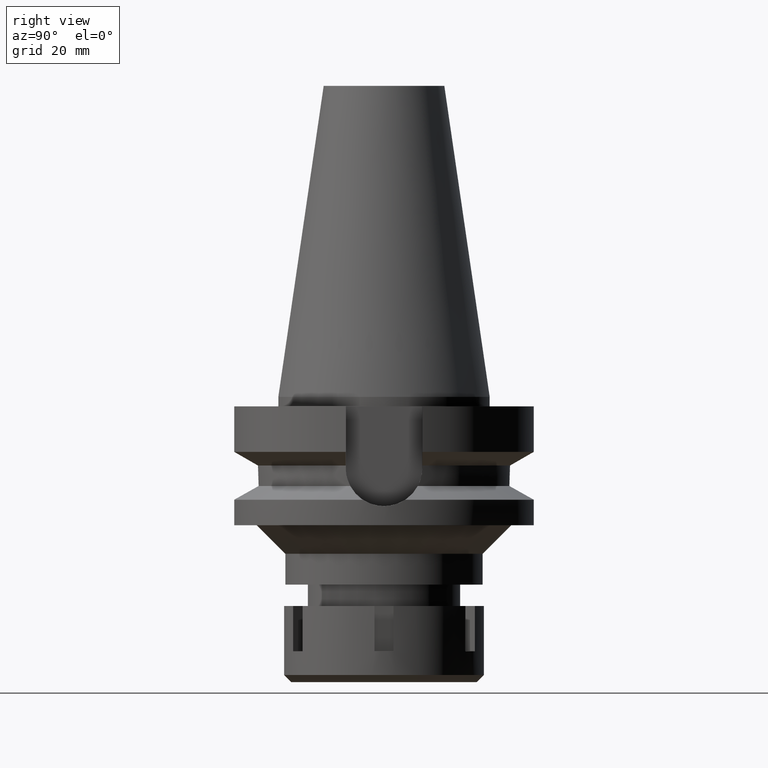
[diagram: clean part render]
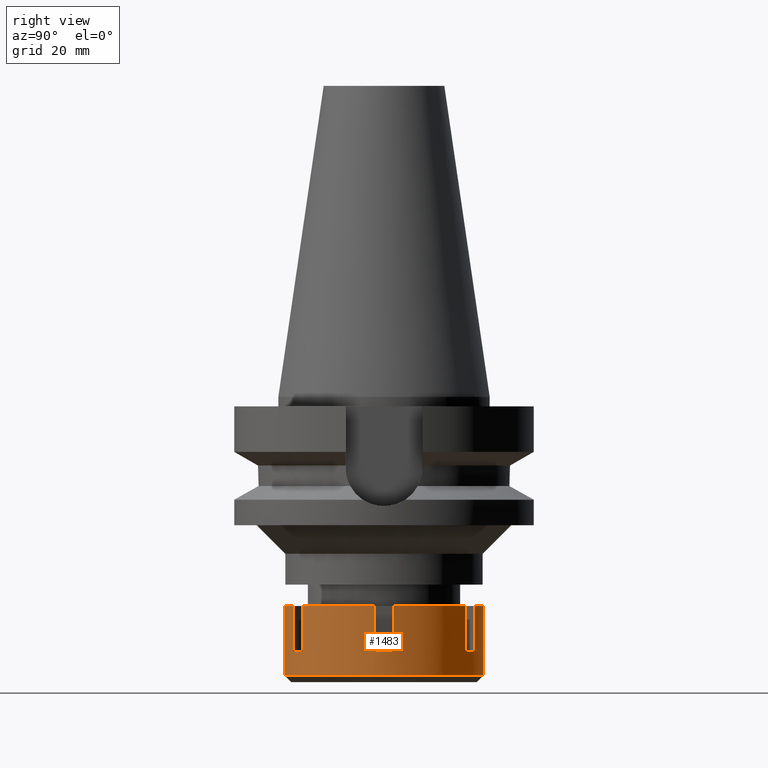
[diagram: same view with one face highlighted and labeled with its STEP entity id]
A machine part, right view. The second image highlights one B-rep face of the part: STEP entity #1483.
In plain terms, the highlighted cylindrical surface (partial cylindrical patch) has radius 21 mm, axis along (0, 0, -1).
Its self-contained STEP definition (entity closure, byte-faithful):
#46 = CARTESIAN_POINT ( 'NONE',  ( 0.0000000000000000000, 21.00000000000000000, 0.0000000000000000000 ) ) ;
#50 = EDGE_CURVE ( 'NONE', #1843, #845, #1186, .T. ) ;
#56 = EDGE_CURVE ( 'NONE', #3123, #1240, #1664, .T. ) ;
#98 = ORIENTED_EDGE ( 'NONE', *, *, #822, .F. ) ;
#131 = DIRECTION ( 'NONE',  ( 0.5802058708454290725, 0.8144698566776411575, 0.0000000000000000000 ) ) ;
#134 = ORIENTED_EDGE ( 'NONE', *, *, #56, .F. ) ;
#138 = DIRECTION ( 'NONE',  ( 0.0000000000000000000, 1.000000000000000000, 0.0000000000000000000 ) ) ;
#145 = EDGE_CURVE ( 'NONE', #2731, #2909, #1020, .T. ) ;
#228 = ORIENTED_EDGE ( 'NONE', *, *, #3002, .T. ) ;
#262 = DIRECTION ( 'NONE',  ( 0.0000000000000000000, 0.0000000000000000000, -1.000000000000000000 ) ) ;
#269 = EDGE_CURVE ( 'NONE', #3010, #2826, #1928, .T. ) ;
#288 = CARTESIAN_POINT ( 'NONE',  ( 0.0000000000000000000, -21.00000000000000000, 0.0000000000000000000 ) ) ;
#289 = CARTESIAN_POINT ( 'NONE',  ( 12.18432328774999895, 17.10386699022999935, 0.0000000000000000000 ) ) ;
#364 = DIRECTION ( 'NONE',  ( 0.5802058708453158298, -0.8144698566777217597, 0.0000000000000000000 ) ) ;
#367 = VERTEX_POINT ( 'NONE', #2955 ) ;
#404 = ORIENTED_EDGE ( 'NONE', *, *, #1517, .F. ) ;
#430 = ORIENTED_EDGE ( 'NONE', *, *, #269, .T. ) ;
#479 = VERTEX_POINT ( 'NONE', #288 ) ;
#480 = LINE ( 'NONE', #1288, #1196 ) ;
#494 = ORIENTED_EDGE ( 'NONE', *, *, #145, .T. ) ;
#576 = EDGE_CURVE ( 'NONE', #1843, #1767, #3439, .T. ) ;
#634 = DIRECTION ( 'NONE',  ( 0.0000000000000000000, 0.0000000000000000000, 1.000000000000000000 ) ) ;
#742 = AXIS2_PLACEMENT_3D ( 'NONE', #857, #2726, #878 ) ;
#743 = CARTESIAN_POINT ( 'NONE',  ( 0.0000000000000000000, 0.0000000000000000000, 0.0000000000000000000 ) ) ;
#782 = CARTESIAN_POINT ( 'NONE',  ( 8.720221672615000585, 19.10386699022999935, 0.0000000000000000000 ) ) ;
#792 = CARTESIAN_POINT ( 'NONE',  ( 8.720221672615000585, -19.10386699022999935, -9.500000000000000000 ) ) ;
#805 = AXIS2_PLACEMENT_3D ( 'NONE', #2020, #2055, #131 ) ;
#822 = EDGE_CURVE ( 'NONE', #2102, #1767, #480, .T. ) ;
#833 = CARTESIAN_POINT ( 'NONE',  ( 0.0000000000000000000, 0.0000000000000000000, 0.0000000000000000000 ) ) ;
#845 = VERTEX_POINT ( 'NONE', #1037 ) ;
#857 = CARTESIAN_POINT ( 'NONE',  ( 0.0000000000000000000, 0.0000000000000000000, 0.0000000000000000000 ) ) ;
#878 = DIRECTION ( 'NONE',  ( 0.0000000000000000000, -1.000000000000000000, 0.0000000000000000000 ) ) ;
#885 = ORIENTED_EDGE ( 'NONE', *, *, #2565, .F. ) ;
#887 = CARTESIAN_POINT ( 'NONE',  ( 12.18432328774999895, 17.10386699022999935, 0.0000000000000000000 ) ) ;
#901 = DIRECTION ( 'NONE',  ( 0.0000000000000000000, 0.0000000000000000000, -1.000000000000000000 ) ) ;
#940 = DIRECTION ( 'NONE',  ( 0.0000000000000000000, 0.0000000000000000000, 1.000000000000000000 ) ) ;
#980 = CIRCLE ( 'NONE', #1441, 20.99999999999999289 ) ;
#986 = CARTESIAN_POINT ( 'NONE',  ( 0.0000000000000000000, 0.0000000000000000000, -14.50000000000000000 ) ) ;
#988 = CARTESIAN_POINT ( 'NONE',  ( 0.0000000000000000000, -21.00000000000000000, -14.50000000000000000 ) ) ;
#1016 = DIRECTION ( 'NONE',  ( 0.0000000000000000000, 0.0000000000000000000, -1.000000000000000000 ) ) ;
#1020 = CIRCLE ( 'NONE', #3549, 21.00000000000000000 ) ;
#1031 = DIRECTION ( 'NONE',  ( 0.4152486510768949035, 0.9097079519157886818, 0.0000000000000000000 ) ) ;
#1037 = CARTESIAN_POINT ( 'NONE',  ( 12.18432328774999895, -17.10386699022999935, 0.0000000000000000000 ) ) ;
#1072 = VECTOR ( 'NONE', #1966, 1000.000000000000000 ) ;
#1080 = AXIS2_PLACEMENT_3D ( 'NONE', #3191, #1016, #2129 ) ;
#1183 = EDGE_CURVE ( 'NONE', #2964, #1240, #3035, .T. ) ;
#1186 = LINE ( 'NONE', #2519, #3091 ) ;
#1193 = VECTOR ( 'NONE', #940, 1000.000000000000000 ) ;
#1196 = VECTOR ( 'NONE', #2420, 1000.000000000000000 ) ;
#1203 = ORIENTED_EDGE ( 'NONE', *, *, #1355, .T. ) ;
#1240 = VERTEX_POINT ( 'NONE', #1297 ) ;
#1255 = ORIENTED_EDGE ( 'NONE', *, *, #50, .F. ) ;
#1288 = CARTESIAN_POINT ( 'NONE',  ( 8.720221672615000585, -19.10386699022999935, 0.0000000000000000000 ) ) ;
#1297 = CARTESIAN_POINT ( 'NONE',  ( 20.90454496036999998, 2.000000000000000000, 0.0000000000000000000 ) ) ;
#1301 = ORIENTED_EDGE ( 'NONE', *, *, #2257, .F. ) ;
#1342 = CARTESIAN_POINT ( 'NONE',  ( 0.0000000000000000000, 21.00000000000000000, -14.50000000000000000 ) ) ;
#1355 = EDGE_CURVE ( 'NONE', #3306, #367, #3324, .T. ) ;
#1365 = AXIS2_PLACEMENT_3D ( 'NONE', #2827, #2810, #364 ) ;
#1369 = LINE ( 'NONE', #2449, #2146 ) ;
#1441 = AXIS2_PLACEMENT_3D ( 'NONE', #2228, #901, #1926 ) ;
#1483 = ADVANCED_FACE ( 'NONE', ( #3330 ), #3296, .T. ) ;
#1517 = EDGE_CURVE ( 'NONE', #3215, #3555, #1369, .T. ) ;
#1538 = ORIENTED_EDGE ( 'NONE', *, *, #576, .T. ) ;
#1563 = CARTESIAN_POINT ( 'NONE',  ( 0.0000000000000000000, 0.0000000000000000000, -9.500000000000000000 ) ) ;
#1581 = VECTOR ( 'NONE', #3405, 1000.000000000000000 ) ;
#1588 = AXIS2_PLACEMENT_3D ( 'NONE', #833, #3287, #3300 ) ;
#1604 = ORIENTED_EDGE ( 'NONE', *, *, #1183, .T. ) ;
#1664 = LINE ( 'NONE', #3098, #1193 ) ;
#1712 = LINE ( 'NONE', #2806, #2677 ) ;
#1767 = VERTEX_POINT ( 'NONE', #792 ) ;
#1843 = VERTEX_POINT ( 'NONE', #2408 ) ;
#1855 = EDGE_CURVE ( 'NONE', #2102, #479, #3094, .T. ) ;
#1861 = ORIENTED_EDGE ( 'NONE', *, *, #1979, .T. ) ;
#1926 = DIRECTION ( 'NONE',  ( 0.9954545219222313834, 0.09523809523810303213, 0.0000000000000000000 ) ) ;
#1928 = CIRCLE ( 'NONE', #1982, 21.00000000000000000 ) ;
#1953 = LINE ( 'NONE', #3345, #1072 ) ;
#1961 = CARTESIAN_POINT ( 'NONE',  ( 20.90454496036999998, -2.000000000000000000, -9.500000000000000000 ) ) ;
#1966 = DIRECTION ( 'NONE',  ( 0.0000000000000000000, 0.0000000000000000000, -1.000000000000000000 ) ) ;
#1979 = EDGE_CURVE ( 'NONE', #3215, #845, #2438, .T. ) ;
#1982 = AXIS2_PLACEMENT_3D ( 'NONE', #743, #2625, #138 ) ;
#2005 = ORIENTED_EDGE ( 'NONE', *, *, #2618, .T. ) ;
#2020 = CARTESIAN_POINT ( 'NONE',  ( 0.0000000000000000000, 0.0000000000000000000, 0.0000000000000000000 ) ) ;
#2055 = DIRECTION ( 'NONE',  ( 0.0000000000000000000, 0.0000000000000000000, -1.000000000000000000 ) ) ;
#2064 = CARTESIAN_POINT ( 'NONE',  ( 0.0000000000000000000, -21.00000000000000000, 0.0000000000000000000 ) ) ;
#2102 = VERTEX_POINT ( 'NONE', #2925 ) ;
#2129 = DIRECTION ( 'NONE',  ( 0.4152486510768949035, -0.9097079519157886818, 0.0000000000000000000 ) ) ;
#2146 = VECTOR ( 'NONE', #2748, 1000.000000000000000 ) ;
#2189 = CARTESIAN_POINT ( 'NONE',  ( 20.90454496036999998, 2.000000000000000000, -9.500000000000000000 ) ) ;
#2228 = CARTESIAN_POINT ( 'NONE',  ( 0.0000000000000000000, 0.0000000000000000000, -9.500000000000000000 ) ) ;
#2233 = VECTOR ( 'NONE', #2515, 1000.000000000000000 ) ;
#2257 = EDGE_CURVE ( 'NONE', #3306, #2826, #1712, .T. ) ;
#2333 = CARTESIAN_POINT ( 'NONE',  ( 8.720221672615998898, 19.10386699022999935, -9.500000000000000000 ) ) ;
#2408 = CARTESIAN_POINT ( 'NONE',  ( 12.18432328774999895, -17.10386699022999935, -9.500000000000000000 ) ) ;
#2420 = DIRECTION ( 'NONE',  ( 0.0000000000000000000, 0.0000000000000000000, -1.000000000000000000 ) ) ;
#2438 = CIRCLE ( 'NONE', #1588, 20.99999999999999289 ) ;
#2449 = CARTESIAN_POINT ( 'NONE',  ( 20.90454496036999998, -2.000000000000000000, 0.0000000000000000000 ) ) ;
#2515 = DIRECTION ( 'NONE',  ( 0.0000000000000000000, 0.0000000000000000000, -1.000000000000000000 ) ) ;
#2519 = CARTESIAN_POINT ( 'NONE',  ( 12.18432328774999895, -17.10386699022999935, -9.500000000000000000 ) ) ;
#2542 = DIRECTION ( 'NONE',  ( 0.0000000000000000000, 0.0000000000000000000, 1.000000000000000000 ) ) ;
#2565 = EDGE_CURVE ( 'NONE', #3010, #2909, #1953, .T. ) ;
#2584 = ORIENTED_EDGE ( 'NONE', *, *, #3021, .F. ) ;
#2618 = EDGE_CURVE ( 'NONE', #479, #2731, #3473, .T. ) ;
#2625 = DIRECTION ( 'NONE',  ( 0.0000000000000000000, 0.0000000000000000000, -1.000000000000000000 ) ) ;
#2646 = DIRECTION ( 'NONE',  ( 0.0000000000000000000, 0.0000000000000000000, 1.000000000000000000 ) ) ;
#2677 = VECTOR ( 'NONE', #2542, 1000.000000000000000 ) ;
#2726 = DIRECTION ( 'NONE',  ( 0.0000000000000000000, 0.0000000000000000000, -1.000000000000000000 ) ) ;
#2731 = VERTEX_POINT ( 'NONE', #988 ) ;
#2748 = DIRECTION ( 'NONE',  ( 0.0000000000000000000, 0.0000000000000000000, -1.000000000000000000 ) ) ;
#2797 = AXIS2_PLACEMENT_3D ( 'NONE', #1563, #262, #1031 ) ;
#2802 = ORIENTED_EDGE ( 'NONE', *, *, #1855, .T. ) ;
#2806 = CARTESIAN_POINT ( 'NONE',  ( 8.720221672615000585, 19.10386699022999935, -9.500000000000000000 ) ) ;
#2810 = DIRECTION ( 'NONE',  ( 0.0000000000000000000, 0.0000000000000000000, -1.000000000000000000 ) ) ;
#2826 = VERTEX_POINT ( 'NONE', #782 ) ;
#2827 = CARTESIAN_POINT ( 'NONE',  ( 0.0000000000000000000, 0.0000000000000000000, -9.500000000000000000 ) ) ;
#2884 = CARTESIAN_POINT ( 'NONE',  ( 20.90454496036999998, -2.000000000000000000, 0.0000000000000000000 ) ) ;
#2909 = VERTEX_POINT ( 'NONE', #1342 ) ;
#2925 = CARTESIAN_POINT ( 'NONE',  ( 8.720221672615000585, -19.10386699022999935, 0.0000000000000000000 ) ) ;
#2955 = CARTESIAN_POINT ( 'NONE',  ( 12.18432328774999895, 17.10386699022999935, -9.500000000000000000 ) ) ;
#2964 = VERTEX_POINT ( 'NONE', #289 ) ;
#3002 = EDGE_CURVE ( 'NONE', #3123, #3555, #980, .T. ) ;
#3010 = VERTEX_POINT ( 'NONE', #46 ) ;
#3021 = EDGE_CURVE ( 'NONE', #2964, #367, #3055, .T. ) ;
#3035 = CIRCLE ( 'NONE', #805, 20.99999999999999645 ) ;
#3055 = LINE ( 'NONE', #887, #2233 ) ;
#3091 = VECTOR ( 'NONE', #634, 1000.000000000000000 ) ;
#3094 = CIRCLE ( 'NONE', #1080, 21.00000000000000711 ) ;
#3098 = CARTESIAN_POINT ( 'NONE',  ( 20.90454496036999998, 2.000000000000000000, -9.500000000000000000 ) ) ;
#3123 = VERTEX_POINT ( 'NONE', #2189 ) ;
#3129 = EDGE_LOOP ( 'NONE', ( #2584, #1604, #134, #228, #404, #1861, #1255, #1538, #98, #2802, #2005, #494, #885, #430, #1301, #1203 ) ) ;
#3191 = CARTESIAN_POINT ( 'NONE',  ( 0.0000000000000000000, 0.0000000000000000000, 0.0000000000000000000 ) ) ;
#3193 = DIRECTION ( 'NONE',  ( 0.0000000000000000000, -1.000000000000000000, 0.0000000000000000000 ) ) ;
#3215 = VERTEX_POINT ( 'NONE', #2884 ) ;
#3287 = DIRECTION ( 'NONE',  ( 0.0000000000000000000, 0.0000000000000000000, -1.000000000000000000 ) ) ;
#3296 = CYLINDRICAL_SURFACE ( 'NONE', #742, 21.00000000000000000 ) ;
#3300 = DIRECTION ( 'NONE',  ( 0.9954545219222313834, -0.09523809523810303213, 0.0000000000000000000 ) ) ;
#3306 = VERTEX_POINT ( 'NONE', #2333 ) ;
#3324 = CIRCLE ( 'NONE', #2797, 21.00000000000000711 ) ;
#3330 = FACE_OUTER_BOUND ( 'NONE', #3129, .T. ) ;
#3345 = CARTESIAN_POINT ( 'NONE',  ( 0.0000000000000000000, 21.00000000000000000, 0.0000000000000000000 ) ) ;
#3405 = DIRECTION ( 'NONE',  ( 0.0000000000000000000, 0.0000000000000000000, -1.000000000000000000 ) ) ;
#3439 = CIRCLE ( 'NONE', #1365, 21.00000000000000711 ) ;
#3473 = LINE ( 'NONE', #2064, #1581 ) ;
#3549 = AXIS2_PLACEMENT_3D ( 'NONE', #986, #2646, #3193 ) ;
#3555 = VERTEX_POINT ( 'NONE', #1961 ) ;